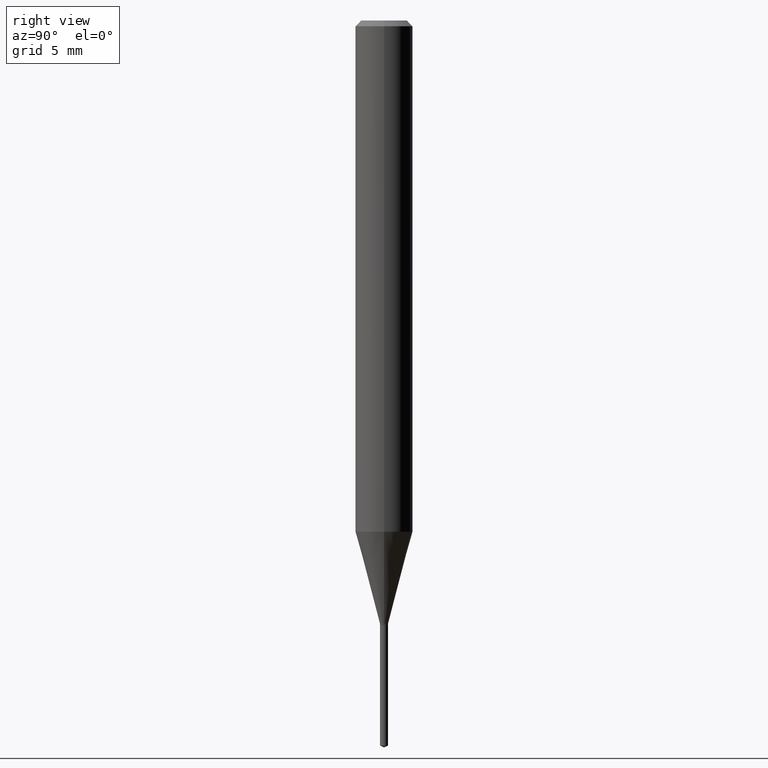
[diagram: clean part render]
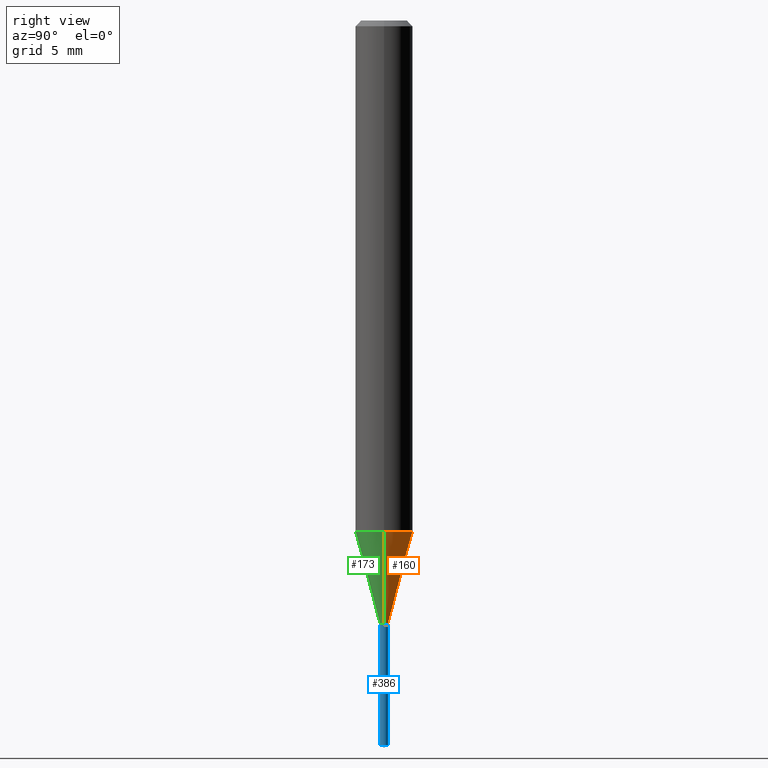
[diagram: same view with three faces highlighted in distinct colors, each labeled with its STEP entity id]
A machine part, right view with three faces highlighted in distinct colors.
Their STEP definitions:

[orange] entity #160 — the highlighted conical surface has half-angle 15 deg.
#2 = CARTESIAN_POINT ( 'NONE',  ( -0.008250000000000000389, -4.276403454607441513E-15, -1.241600000000000037 ) ) ;
#8 = VECTOR ( 'NONE', #340, 39.37007874015748854 ) ;
#10 = CARTESIAN_POINT ( 'NONE',  ( 0.05905000000000013710, -4.085423580312769324E-15, -1.052011818975500779 ) ) ;
#17 = AXIS2_PLACEMENT_3D ( 'NONE', #404, #149, #292 ) ;
#26 = CARTESIAN_POINT ( 'NONE',  ( 0.008250000000000000389, -4.392632672398560829E-15, -1.241600000000000037 ) ) ;
#35 = EDGE_LOOP ( 'NONE', ( #318, #361, #208, #320 ) ) ;
#50 = VERTEX_POINT ( 'NONE', #26 ) ;
#87 = CARTESIAN_POINT ( 'NONE',  ( 3.036294069759465269E-29, -4.335023230307649634E-15, -1.241600000000000037 ) ) ;
#91 = DIRECTION ( 'NONE',  ( -2.445468806185136597E-29, 3.491481338843145583E-15, 1.000000000000000000 ) ) ;
#104 = CIRCLE ( 'NONE', #411, 0.05905000000000013710 ) ;
#116 = DIRECTION ( 'NONE',  ( -2.445468806185136597E-29, 3.491481338843145583E-15, 1.000000000000000000 ) ) ;
#149 = DIRECTION ( 'NONE',  ( -2.445468806185136597E-29, 3.491481338843145583E-15, 1.000000000000000000 ) ) ;
#152 = CIRCLE ( 'NONE', #219, 0.008250000000000000389 ) ;
#160 = ADVANCED_FACE ( 'NONE', ( #218 ), #331, .T. ) ;
#168 = VERTEX_POINT ( 'NONE', #193 ) ;
#193 = CARTESIAN_POINT ( 'NONE',  ( -0.008250000000000000389, -4.279894935946284521E-15, -1.241600000000000037 ) ) ;
#200 = DIRECTION ( 'NONE',  ( 1.000000000000000000, -6.982962677686243834E-15, 0.000000000000000000 ) ) ;
#205 = EDGE_CURVE ( 'NONE', #168, #462, #451, .T. ) ;
#208 = ORIENTED_EDGE ( 'NONE', *, *, #454, .F. ) ;
#218 = FACE_OUTER_BOUND ( 'NONE', #35, .T. ) ;
#219 = AXIS2_PLACEMENT_3D ( 'NONE', #87, #116, #200 ) ;
#234 = DIRECTION ( 'NONE',  ( 1.000000000000000000, -6.982962677686264344E-15, 0.000000000000000000 ) ) ;
#261 = EDGE_CURVE ( 'NONE', #50, #168, #152, .T. ) ;
#273 = LINE ( 'NONE', #307, #420 ) ;
#276 = VERTEX_POINT ( 'NONE', #10 ) ;
#292 = DIRECTION ( 'NONE',  ( 1.000000000000000000, -6.982962677686243834E-15, 0.000000000000000000 ) ) ;
#304 = CARTESIAN_POINT ( 'NONE',  ( 2.572662087042671903E-29, -3.673079634195394404E-15, -1.052011818975500779 ) ) ;
#307 = CARTESIAN_POINT ( 'NONE',  ( 0.008250000000000000389, -4.392632672398560829E-15, -1.241600000000000037 ) ) ;
#318 = ORIENTED_EDGE ( 'NONE', *, *, #261, .T. ) ;
#320 = ORIENTED_EDGE ( 'NONE', *, *, #441, .F. ) ;
#331 = CONICAL_SURFACE ( 'NONE', #17, 0.008250000000000000389, 0.2617993877991499074 ) ;
#340 = DIRECTION ( 'NONE',  ( -0.2588190451025211836, 5.211531920934547886E-15, 0.9659258262890679791 ) ) ;
#361 = ORIENTED_EDGE ( 'NONE', *, *, #205, .T. ) ;
#404 = CARTESIAN_POINT ( 'NONE',  ( 3.036294069759465269E-29, -4.335023230307649634E-15, -1.241600000000000037 ) ) ;
#411 = AXIS2_PLACEMENT_3D ( 'NONE', #304, #91, #234 ) ;
#420 = VECTOR ( 'NONE', #426, 39.37007874015748854 ) ;
#426 = DIRECTION ( 'NONE',  ( 0.2588190451025211836, 1.565188264969622559E-15, 0.9659258262890679791 ) ) ;
#441 = EDGE_CURVE ( 'NONE', #50, #276, #273, .T. ) ;
#451 = LINE ( 'NONE', #2, #8 ) ;
#454 = EDGE_CURVE ( 'NONE', #276, #462, #104, .T. ) ;
#460 = CARTESIAN_POINT ( 'NONE',  ( -0.05905000000000013710, -3.253504148729054517E-15, -1.052011818975500779 ) ) ;
#462 = VERTEX_POINT ( 'NONE', #460 ) ;

[blue] entity #386 — the highlighted cylindrical surface (edge-blend (fillet) strip) has radius 0.2096 mm, axis along (-0, 0, 1).
#1 = CARTESIAN_POINT ( 'NONE',  ( 5.861977570023868854E-17, 0.008249999999995658376, -1.244099999999999984 ) ) ;
#14 = EDGE_CURVE ( 'NONE', #178, #478, #348, .T. ) ;
#18 = CIRCLE ( 'NONE', #196, 0.008250000000000000389 ) ;
#30 = CARTESIAN_POINT ( 'NONE',  ( -5.760944209088129273E-17, -0.008250000000004345871, -1.244099999999999984 ) ) ;
#40 = DIRECTION ( 'NONE',  ( -2.433949354103485076E-29, 3.507977849870565923E-15, 1.000000000000000000 ) ) ;
#47 = DIRECTION ( 'NONE',  ( -6.982962677686266711E-15, -1.000000000000000000, 0.000000000000000000 ) ) ;
#86 = AXIS2_PLACEMENT_3D ( 'NONE', #374, #40, #47 ) ;
#101 = EDGE_LOOP ( 'NONE', ( #288, #157, #381, #162 ) ) ;
#113 = CYLINDRICAL_SURFACE ( 'NONE', #86, 0.008250000000000002123 ) ;
#122 = EDGE_CURVE ( 'NONE', #178, #151, #362, .T. ) ;
#124 = CARTESIAN_POINT ( 'NONE',  ( 5.861977570024480222E-17, 0.008249999999995656641, -1.244099999999999984 ) ) ;
#151 = VERTEX_POINT ( 'NONE', #399 ) ;
#157 = ORIENTED_EDGE ( 'NONE', *, *, #311, .T. ) ;
#162 = ORIENTED_EDGE ( 'NONE', *, *, #122, .F. ) ;
#178 = VERTEX_POINT ( 'NONE', #370 ) ;
#196 = AXIS2_PLACEMENT_3D ( 'NONE', #291, #223, #366 ) ;
#211 = DIRECTION ( 'NONE',  ( -2.433949354103485076E-29, 3.507977849870565923E-15, 1.000000000000000000 ) ) ;
#223 = DIRECTION ( 'NONE',  ( -2.433949354103485076E-29, 3.507977849870565923E-15, 1.000000000000000000 ) ) ;
#249 = DIRECTION ( 'NONE',  ( -2.433949354103485076E-29, 3.507977849870566318E-15, 1.000000000000000000 ) ) ;
#266 = CARTESIAN_POINT ( 'NONE',  ( 5.861977570024475291E-17, 0.008249999999994789279, -1.492252961820221158 ) ) ;
#278 = CARTESIAN_POINT ( 'NONE',  ( 3.646399482916122911E-29, -5.214267027099868810E-15, -1.492252961820221158 ) ) ;
#288 = ORIENTED_EDGE ( 'NONE', *, *, #14, .T. ) ;
#291 = CARTESIAN_POINT ( 'NONE',  ( 3.042407741774928155E-29, -4.343751933654757151E-15, -1.244099999999999984 ) ) ;
#311 = EDGE_CURVE ( 'NONE', #478, #468, #453, .T. ) ;
#325 = VECTOR ( 'NONE', #249, 39.37007874015748143 ) ;
#348 = CIRCLE ( 'NONE', #409, 0.008250000000000003858 ) ;
#362 = LINE ( 'NONE', #30, #325 ) ;
#363 = EDGE_CURVE ( 'NONE', #151, #468, #18, .T. ) ;
#366 = DIRECTION ( 'NONE',  ( -6.982962677686265133E-15, -1.000000000000000000, 0.000000000000000000 ) ) ;
#369 = FACE_OUTER_BOUND ( 'NONE', #101, .T. ) ;
#370 = CARTESIAN_POINT ( 'NONE',  ( -5.760944209087525302E-17, -0.008250000000005218437, -1.492252961820221158 ) ) ;
#374 = CARTESIAN_POINT ( 'NONE',  ( 3.042407741774928155E-29, -4.343751933654757151E-15, -1.244099999999999984 ) ) ;
#381 = ORIENTED_EDGE ( 'NONE', *, *, #363, .F. ) ;
#386 = ADVANCED_FACE ( 'NONE', ( #369 ), #113, .T. ) ;
#391 = VECTOR ( 'NONE', #406, 39.37007874015748143 ) ;
#399 = CARTESIAN_POINT ( 'NONE',  ( -5.760944209088126808E-17, -0.008250000000004344136, -1.244099999999999984 ) ) ;
#406 = DIRECTION ( 'NONE',  ( -2.433949354103485076E-29, 3.507977849870566318E-15, 1.000000000000000000 ) ) ;
#409 = AXIS2_PLACEMENT_3D ( 'NONE', #278, #211, #434 ) ;
#434 = DIRECTION ( 'NONE',  ( -6.982962677686266711E-15, -1.000000000000000000, 0.000000000000000000 ) ) ;
#453 = LINE ( 'NONE', #1, #391 ) ;
#468 = VERTEX_POINT ( 'NONE', #124 ) ;
#478 = VERTEX_POINT ( 'NONE', #266 ) ;

[green] entity #173 — the highlighted conical surface has half-angle 15 deg.
#2 = CARTESIAN_POINT ( 'NONE',  ( -0.008250000000000000389, -4.276403454607441513E-15, -1.241600000000000037 ) ) ;
#6 = ORIENTED_EDGE ( 'NONE', *, *, #441, .T. ) ;
#8 = VECTOR ( 'NONE', #340, 39.37007874015748854 ) ;
#10 = CARTESIAN_POINT ( 'NONE',  ( 0.05905000000000013710, -4.085423580312769324E-15, -1.052011818975500779 ) ) ;
#19 = ORIENTED_EDGE ( 'NONE', *, *, #205, .F. ) ;
#26 = CARTESIAN_POINT ( 'NONE',  ( 0.008250000000000000389, -4.392632672398560829E-15, -1.241600000000000037 ) ) ;
#38 = CARTESIAN_POINT ( 'NONE',  ( 3.036294069759465269E-29, -4.335023230307649634E-15, -1.241600000000000037 ) ) ;
#42 = FACE_OUTER_BOUND ( 'NONE', #250, .T. ) ;
#50 = VERTEX_POINT ( 'NONE', #26 ) ;
#74 = CARTESIAN_POINT ( 'NONE',  ( 2.572662087042671903E-29, -3.673079634195394404E-15, -1.052011818975500779 ) ) ;
#118 = AXIS2_PLACEMENT_3D ( 'NONE', #38, #235, #456 ) ;
#125 = DIRECTION ( 'NONE',  ( -2.445468806185136597E-29, 3.491481338843145583E-15, 1.000000000000000000 ) ) ;
#154 = CARTESIAN_POINT ( 'NONE',  ( 3.036294069759465269E-29, -4.335023230307649634E-15, -1.241600000000000037 ) ) ;
#161 = DIRECTION ( 'NONE',  ( 1.000000000000000000, -6.982962677686243834E-15, 0.000000000000000000 ) ) ;
#166 = CIRCLE ( 'NONE', #463, 0.05905000000000013710 ) ;
#168 = VERTEX_POINT ( 'NONE', #193 ) ;
#173 = ADVANCED_FACE ( 'NONE', ( #42 ), #427, .T. ) ;
#192 = DIRECTION ( 'NONE',  ( 1.000000000000000000, -6.982962677686264344E-15, 0.000000000000000000 ) ) ;
#193 = CARTESIAN_POINT ( 'NONE',  ( -0.008250000000000000389, -4.279894935946284521E-15, -1.241600000000000037 ) ) ;
#199 = EDGE_CURVE ( 'NONE', #168, #50, #380, .T. ) ;
#205 = EDGE_CURVE ( 'NONE', #168, #462, #451, .T. ) ;
#217 = AXIS2_PLACEMENT_3D ( 'NONE', #154, #125, #161 ) ;
#235 = DIRECTION ( 'NONE',  ( -2.445468806185136597E-29, 3.491481338843145583E-15, 1.000000000000000000 ) ) ;
#250 = EDGE_LOOP ( 'NONE', ( #19, #356, #6, #303 ) ) ;
#273 = LINE ( 'NONE', #307, #420 ) ;
#276 = VERTEX_POINT ( 'NONE', #10 ) ;
#303 = ORIENTED_EDGE ( 'NONE', *, *, #328, .F. ) ;
#307 = CARTESIAN_POINT ( 'NONE',  ( 0.008250000000000000389, -4.392632672398560829E-15, -1.241600000000000037 ) ) ;
#328 = EDGE_CURVE ( 'NONE', #462, #276, #166, .T. ) ;
#340 = DIRECTION ( 'NONE',  ( -0.2588190451025211836, 5.211531920934547886E-15, 0.9659258262890679791 ) ) ;
#356 = ORIENTED_EDGE ( 'NONE', *, *, #199, .T. ) ;
#380 = CIRCLE ( 'NONE', #217, 0.008250000000000000389 ) ;
#416 = DIRECTION ( 'NONE',  ( -2.445468806185136597E-29, 3.491481338843145583E-15, 1.000000000000000000 ) ) ;
#420 = VECTOR ( 'NONE', #426, 39.37007874015748854 ) ;
#426 = DIRECTION ( 'NONE',  ( 0.2588190451025211836, 1.565188264969622559E-15, 0.9659258262890679791 ) ) ;
#427 = CONICAL_SURFACE ( 'NONE', #118, 0.008250000000000000389, 0.2617993877991499074 ) ;
#441 = EDGE_CURVE ( 'NONE', #50, #276, #273, .T. ) ;
#451 = LINE ( 'NONE', #2, #8 ) ;
#456 = DIRECTION ( 'NONE',  ( 1.000000000000000000, -6.982962677686243834E-15, 0.000000000000000000 ) ) ;
#460 = CARTESIAN_POINT ( 'NONE',  ( -0.05905000000000013710, -3.253504148729054517E-15, -1.052011818975500779 ) ) ;
#462 = VERTEX_POINT ( 'NONE', #460 ) ;
#463 = AXIS2_PLACEMENT_3D ( 'NONE', #74, #416, #192 ) ;